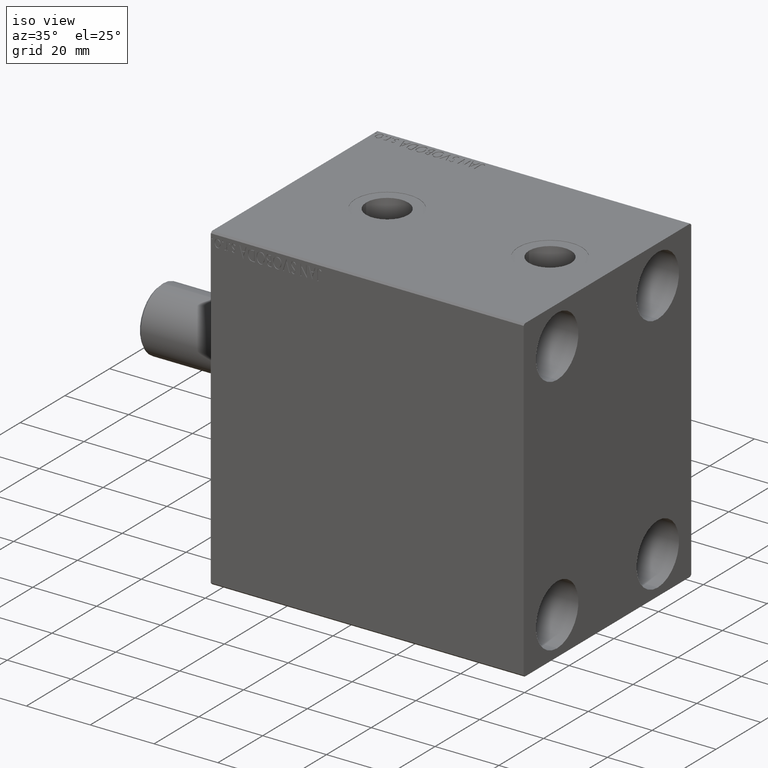
[diagram: clean part render]
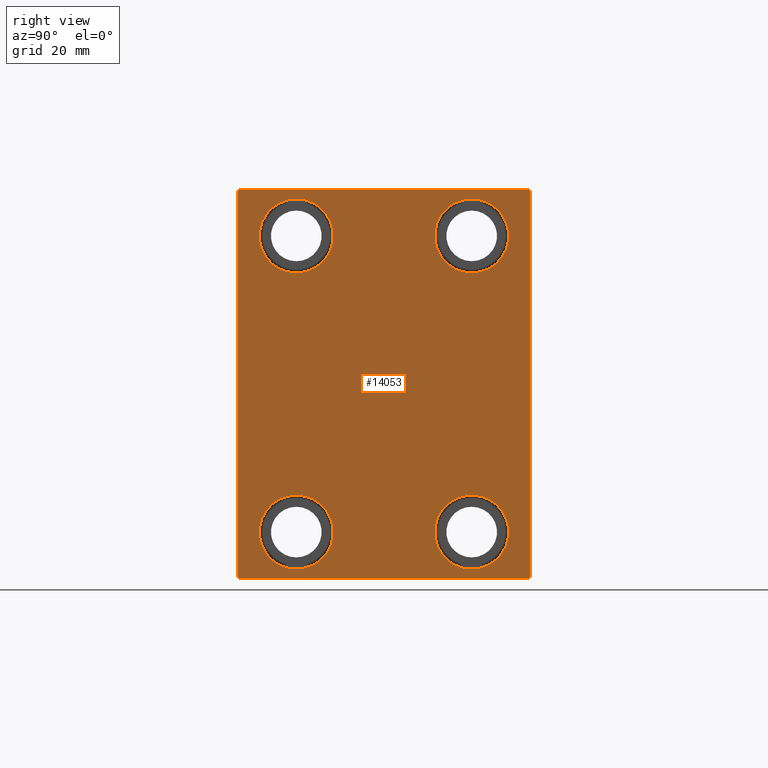
[diagram: tour spotlight — one face highlighted and labeled with its STEP entity id]
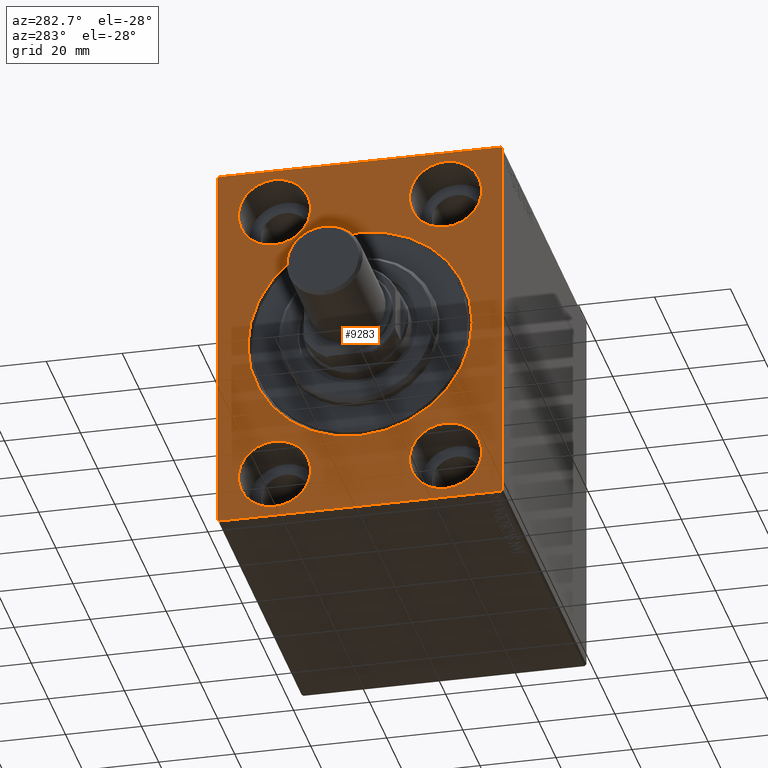
[diagram: tour spotlight — one face highlighted and labeled with its STEP entity id]
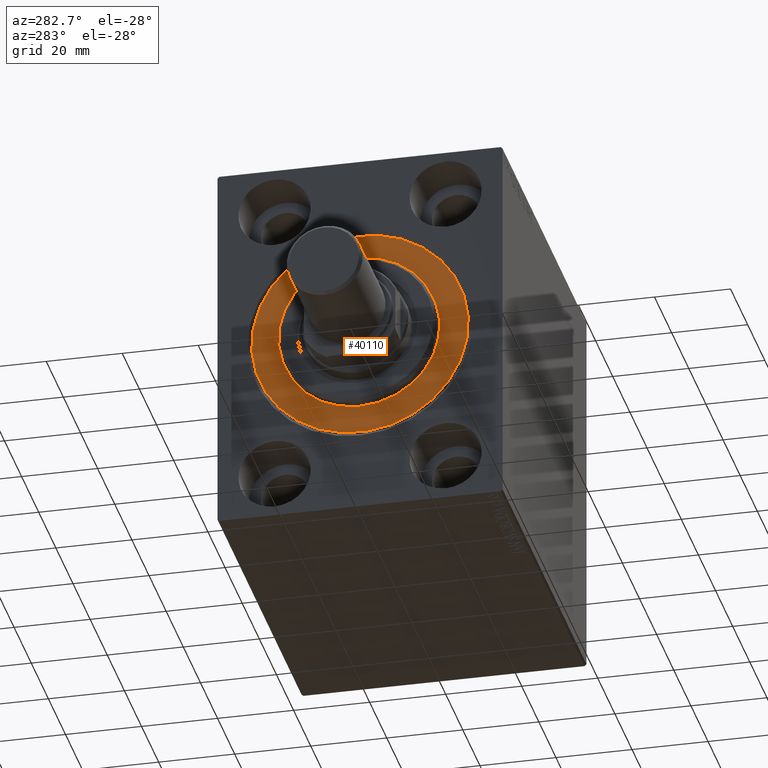
[diagram: tour spotlight — one face highlighted and labeled with its STEP entity id]
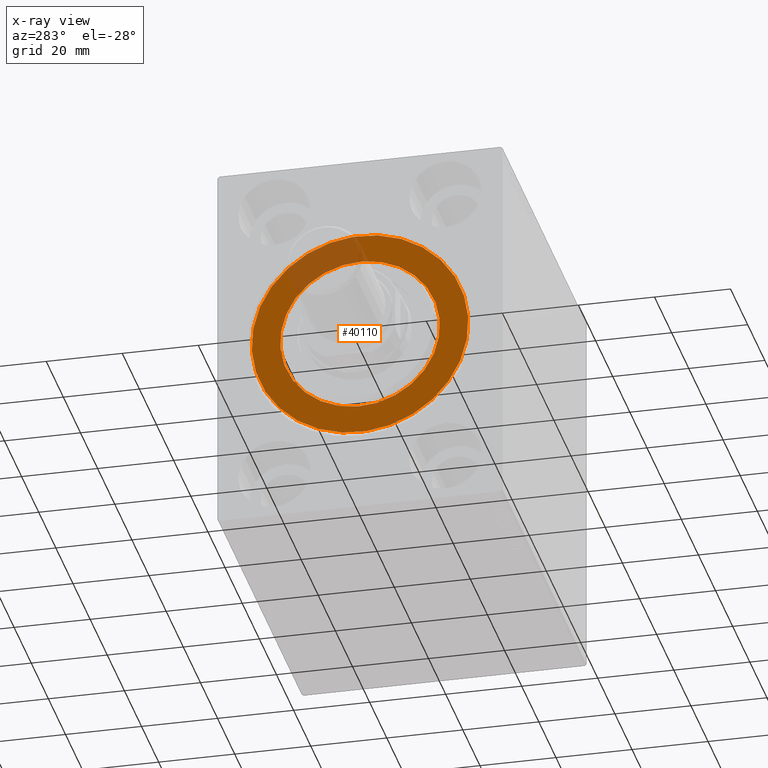
[diagram: x-ray of the same camera — body ghosted, this tour face saturated]
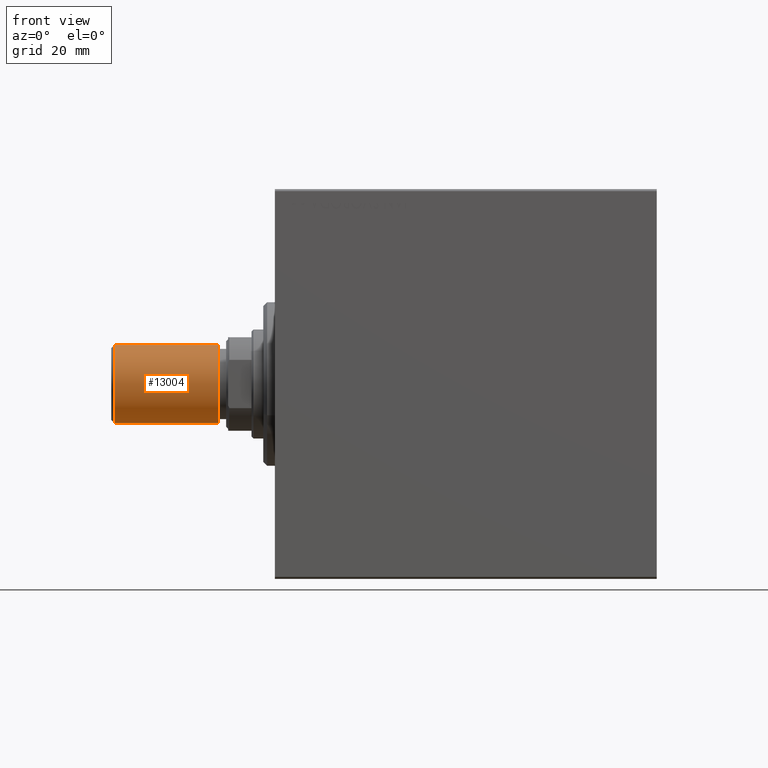
[diagram: tour spotlight — one face highlighted and labeled with its STEP entity id]
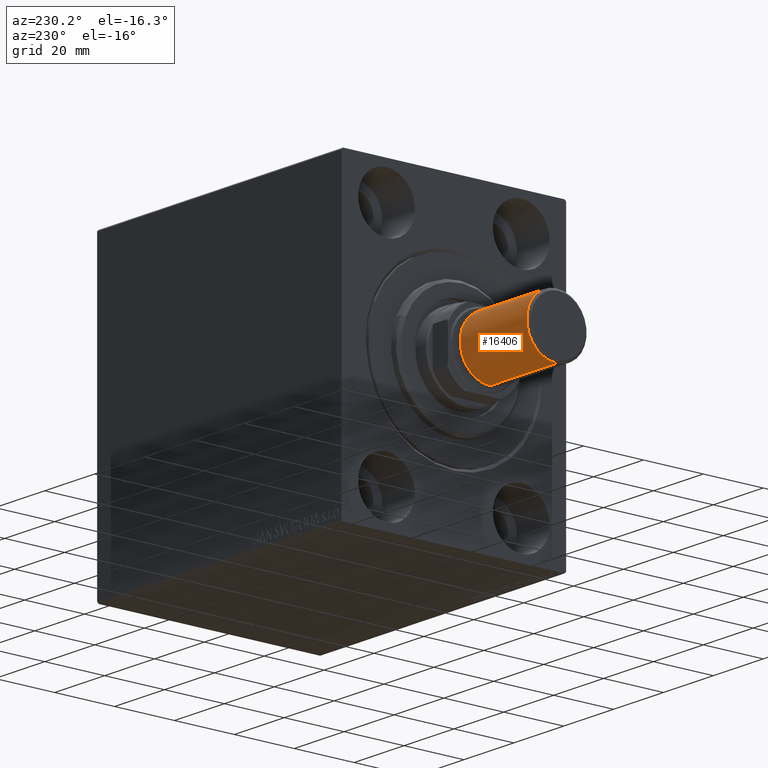
[diagram: tour spotlight — one face highlighted and labeled with its STEP entity id]
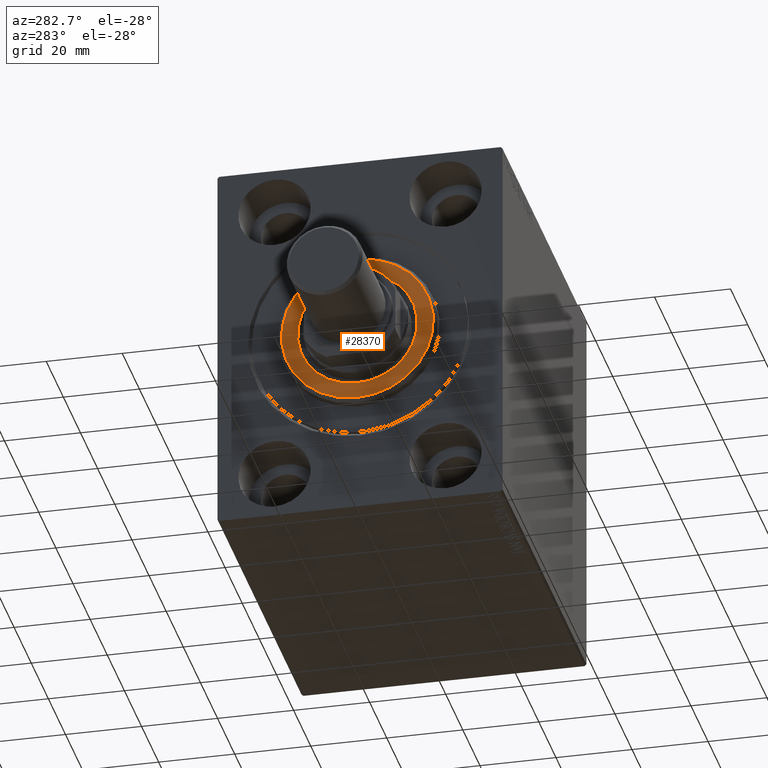
[diagram: tour spotlight — one face highlighted and labeled with its STEP entity id]
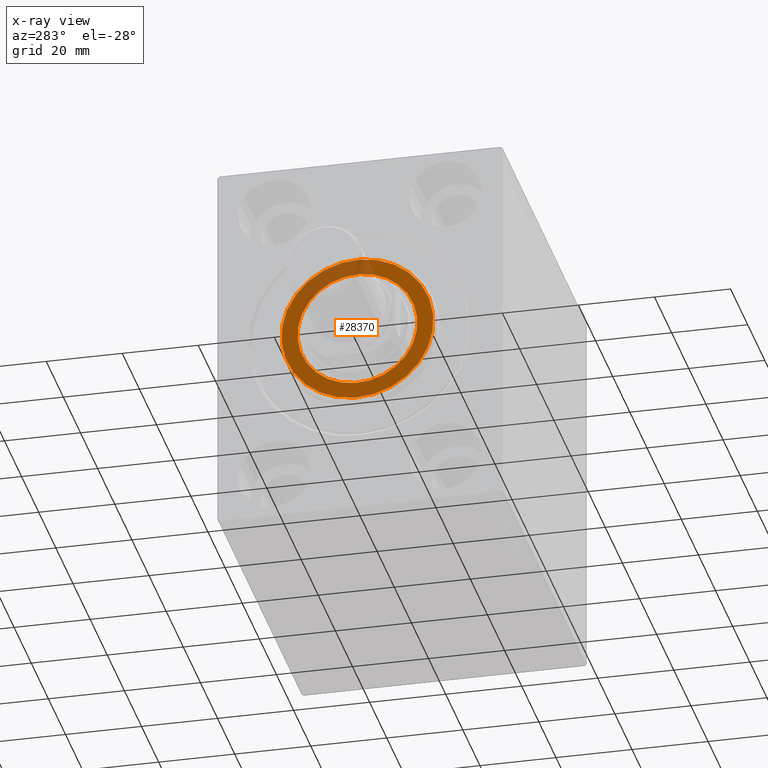
[diagram: x-ray of the same camera — body ghosted, this tour face saturated]
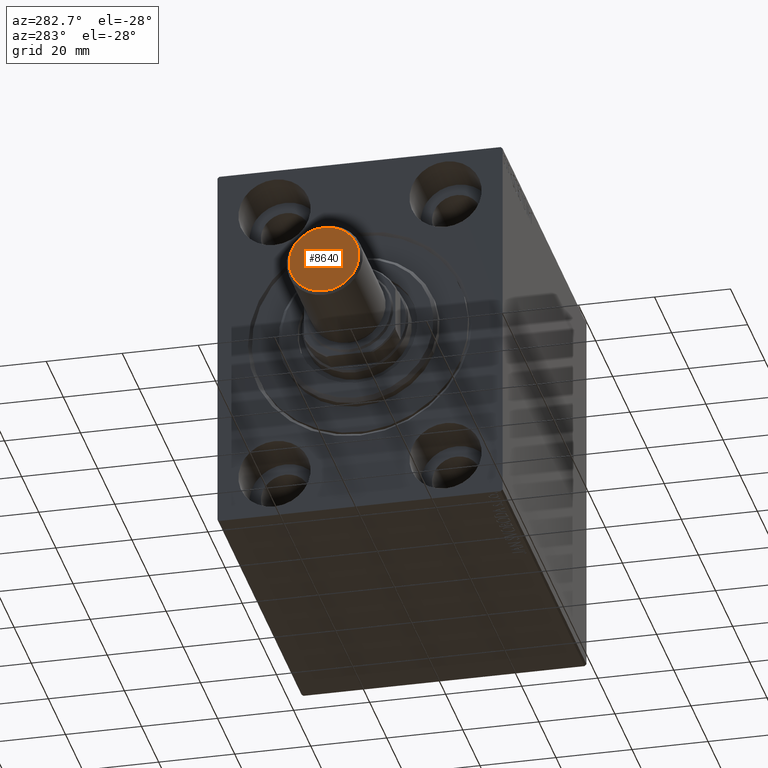
[diagram: tour spotlight — one face highlighted and labeled with its STEP entity id]
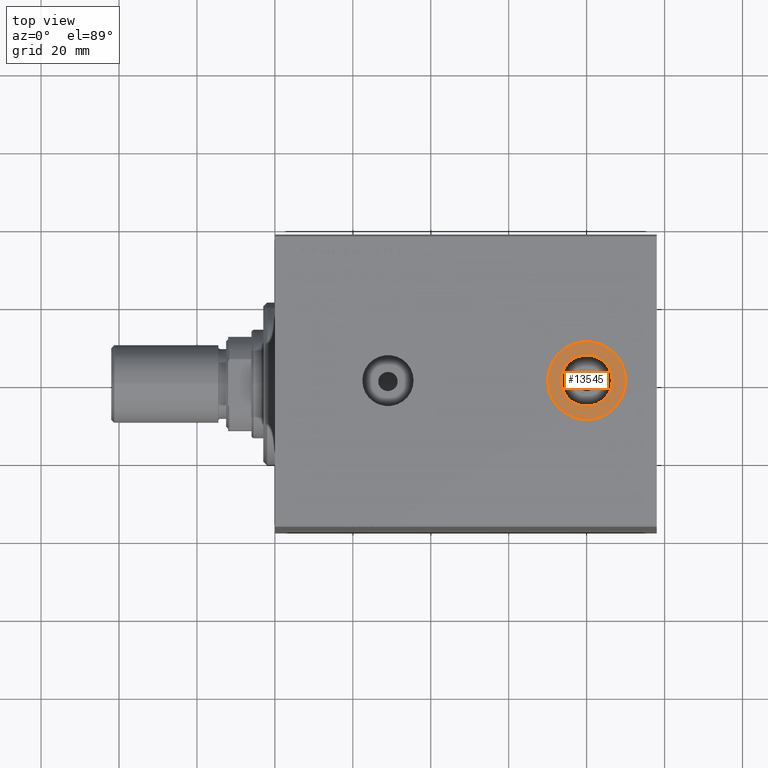
[diagram: tour spotlight — one face highlighted and labeled with its STEP entity id]
A machine part: a face-by-face anatomy tour. The part has 879 B-rep faces; the first image is the clean iso view, then the 8 largest visible faces are spotlighted one at a time (largest first), each with its STEP entity span.

Face 1 — right view, entity #14053. In plain terms, the highlighted planar face has unit normal (1, 0, 0).
Definition (entity closure, byte-faithful):
#362 = EDGE_LOOP ( 'NONE', ( #21159, #27202 ) ) ;
#370 = EDGE_CURVE ( 'NONE', #40879, #10435, #36344, .T. ) ;
#605 = CARTESIAN_POINT ( 'NONE',  ( 98.00000000000000000, -22.50000000000000711, -47.49999999999999289 ) ) ;
#818 = EDGE_LOOP ( 'NONE', ( #34796, #25133 ) ) ;
#903 = LINE ( 'NONE', #2189, #10638 ) ;
#1364 = ORIENTED_EDGE ( 'NONE', *, *, #17977, .T. ) ;
#1519 = CARTESIAN_POINT ( 'NONE',  ( 98.00000000000000000, 22.50000000000000355, 28.49999999999998934 ) ) ;
#1703 = DIRECTION ( 'NONE',  ( 0.000000000000000000, 0.000000000000000000, 1.000000000000000000 ) ) ;
#1953 = AXIS2_PLACEMENT_3D ( 'NONE', #19482, #2151, #1703 ) ;
#1962 = LINE ( 'NONE', #18862, #25014 ) ;
#2151 = DIRECTION ( 'NONE',  ( -1.000000000000000000, -0.000000000000000000, -0.000000000000000000 ) ) ;
#2189 = CARTESIAN_POINT ( 'NONE',  ( 98.00000000000000000, 43.50000000000000711, -43.50000000000000711 ) ) ;
#2456 = FACE_OUTER_BOUND ( 'NONE', #33519, .T. ) ;
#3147 = CARTESIAN_POINT ( 'NONE',  ( 98.00000000000000000, 37.50000000000000711, -49.50000000000000000 ) ) ;
#3574 = DIRECTION ( 'NONE',  ( -1.000000000000000000, -0.000000000000000000, -0.000000000000000000 ) ) ;
#4339 = CARTESIAN_POINT ( 'NONE',  ( 98.00000000000000000, -22.49999999999999645, 37.99999999999999289 ) ) ;
#4883 = AXIS2_PLACEMENT_3D ( 'NONE', #33538, #9860, #40316 ) ;
#5154 = CARTESIAN_POINT ( 'NONE',  ( 98.00000000000000000, 22.49999999999999645, -47.49999999999999289 ) ) ;
#5298 = EDGE_LOOP ( 'NONE', ( #27399, #8895 ) ) ;
#5654 = LINE ( 'NONE', #19386, #18758 ) ;
#5766 = CARTESIAN_POINT ( 'NONE',  ( 98.00000000000000000, -22.49999999999999645, 28.49999999999998934 ) ) ;
#6064 = FACE_BOUND ( 'NONE', #362, .T. ) ;
#6301 = VECTOR ( 'NONE', #37036, 999.9999999999998863 ) ;
#6491 = VERTEX_POINT ( 'NONE', #34784 ) ;
#6723 = FACE_BOUND ( 'NONE', #5298, .T. ) ;
#7126 = AXIS2_PLACEMENT_3D ( 'NONE', #25821, #12077, #40028 ) ;
#7720 = CARTESIAN_POINT ( 'NONE',  ( 98.00000000000000000, -36.99999999999999289, -50.00000000000000711 ) ) ;
#8305 = CARTESIAN_POINT ( 'NONE',  ( 98.00000000000000000, 22.50000000000000355, 37.99999999999999289 ) ) ;
#8330 = DIRECTION ( 'NONE',  ( -0.000000000000000000, 0.7071067811865474617, 0.7071067811865474617 ) ) ;
#8442 = CARTESIAN_POINT ( 'NONE',  ( 98.00000000000000000, -22.49999999999999645, 47.49999999999999289 ) ) ;
#8450 = ORIENTED_EDGE ( 'NONE', *, *, #39974, .T. ) ;
#8471 = CARTESIAN_POINT ( 'NONE',  ( 98.00000000000000000, 22.50000000000000355, 47.49999999999999289 ) ) ;
#8593 = DIRECTION ( 'NONE',  ( 0.000000000000000000, -1.000000000000000000, -1.850371707708594316E-16 ) ) ;
#8895 = ORIENTED_EDGE ( 'NONE', *, *, #40113, .T. ) ;
#9345 = VERTEX_POINT ( 'NONE', #5154 ) ;
#9738 = CARTESIAN_POINT ( 'NONE',  ( 98.00000000000000000, 43.50000000000026290, 43.49999999999965894 ) ) ;
#9851 = CIRCLE ( 'NONE', #1953, 9.500000000000001776 ) ;
#9860 = DIRECTION ( 'NONE',  ( 1.000000000000000000, 0.000000000000000000, 0.000000000000000000 ) ) ;
#9909 = AXIS2_PLACEMENT_3D ( 'NONE', #20336, #40856, #17390 ) ;
#10435 = VERTEX_POINT ( 'NONE', #605 ) ;
#10638 = VECTOR ( 'NONE', #8330, 1000.000000000000114 ) ;
#11002 = CARTESIAN_POINT ( 'NONE',  ( 98.00000000000000000, 22.49999999999999645, -37.99999999999999289 ) ) ;
#11075 = DIRECTION ( 'NONE',  ( 0.000000000000000000, 0.000000000000000000, 1.000000000000000000 ) ) ;
#12077 = DIRECTION ( 'NONE',  ( -1.000000000000000000, -0.000000000000000000, -0.000000000000000000 ) ) ;
#12135 = EDGE_LOOP ( 'NONE', ( #1364, #33235 ) ) ;
#12338 = EDGE_CURVE ( 'NONE', #20696, #43099, #28590, .T. ) ;
#12791 = EDGE_CURVE ( 'NONE', #41630, #19321, #27507, .T. ) ;
#12943 = EDGE_CURVE ( 'NONE', #22672, #6491, #43066, .T. ) ;
#12964 = CARTESIAN_POINT ( 'NONE',  ( 98.00000000000000000, 36.99999999999999289, 50.00000000000000711 ) ) ;
#13653 = EDGE_CURVE ( 'NONE', #9345, #28278, #28620, .T. ) ;
#13798 = ORIENTED_EDGE ( 'NONE', *, *, #24364, .T. ) ;
#13941 = DIRECTION ( 'NONE',  ( 0.000000000000000000, 0.000000000000000000, 1.000000000000000000 ) ) ;
#14053 = ADVANCED_FACE ( 'NONE', ( #6723, #34189, #6064, #23163, #2456 ), #19791, .T. ) ;
#14616 = VERTEX_POINT ( 'NONE', #29980 ) ;
#14710 = EDGE_CURVE ( 'NONE', #38111, #17102, #903, .T. ) ;
#14993 = AXIS2_PLACEMENT_3D ( 'NONE', #4339, #18072, #11075 ) ;
#15234 = EDGE_CURVE ( 'NONE', #17692, #26327, #30088, .T. ) ;
#15281 = DIRECTION ( 'NONE',  ( 0.000000000000000000, 0.000000000000000000, 1.000000000000000000 ) ) ;
#15562 = CARTESIAN_POINT ( 'NONE',  ( 98.00000000000000000, -43.49999999999998579, 43.49999999999998579 ) ) ;
#16083 = ORIENTED_EDGE ( 'NONE', *, *, #12943, .T. ) ;
#16622 = EDGE_CURVE ( 'NONE', #43099, #20696, #19348, .T. ) ;
#16973 = ORIENTED_EDGE ( 'NONE', *, *, #32536, .T. ) ;
#17102 = VERTEX_POINT ( 'NONE', #3147 ) ;
#17210 = ORIENTED_EDGE ( 'NONE', *, *, #14710, .T. ) ;
#17217 = AXIS2_PLACEMENT_3D ( 'NONE', #17546, #28793, #27893 ) ;
#17310 = DIRECTION ( 'NONE',  ( 0.000000000000000000, 0.000000000000000000, 1.000000000000000000 ) ) ;
#17390 = DIRECTION ( 'NONE',  ( 0.000000000000000000, 0.000000000000000000, 1.000000000000000000 ) ) ;
#17546 = CARTESIAN_POINT ( 'NONE',  ( 98.00000000000000000, -22.50000000000000711, -37.99999999999999289 ) ) ;
#17692 = VERTEX_POINT ( 'NONE', #5766 ) ;
#17977 = EDGE_CURVE ( 'NONE', #10435, #40879, #30186, .T. ) ;
#18072 = DIRECTION ( 'NONE',  ( -1.000000000000000000, -0.000000000000000000, -0.000000000000000000 ) ) ;
#18758 = VECTOR ( 'NONE', #29742, 1000.000000000000000 ) ;
#18862 = CARTESIAN_POINT ( 'NONE',  ( 98.00000000000000000, -43.50000000000000000, -43.50000000000000000 ) ) ;
#18867 = EDGE_CURVE ( 'NONE', #19321, #22672, #32023, .T. ) ;
#19247 = AXIS2_PLACEMENT_3D ( 'NONE', #8305, #22031, #15281 ) ;
#19321 = VERTEX_POINT ( 'NONE', #12964 ) ;
#19348 = CIRCLE ( 'NONE', #7126, 9.500000000000001776 ) ;
#19386 = CARTESIAN_POINT ( 'NONE',  ( 98.00000000000000000, -37.50000000000000711, 49.99999999999999289 ) ) ;
#19437 = VECTOR ( 'NONE', #44415, 1000.000000000000000 ) ;
#19482 = CARTESIAN_POINT ( 'NONE',  ( 98.00000000000000000, -22.49999999999999645, 37.99999999999999289 ) ) ;
#19695 = ORIENTED_EDGE ( 'NONE', *, *, #18867, .T. ) ;
#19791 = PLANE ( 'NONE',  #4883 ) ;
#20336 = CARTESIAN_POINT ( 'NONE',  ( 98.00000000000000000, 22.49999999999999645, -37.99999999999999289 ) ) ;
#20696 = VERTEX_POINT ( 'NONE', #8471 ) ;
#21159 = ORIENTED_EDGE ( 'NONE', *, *, #16622, .T. ) ;
#22031 = DIRECTION ( 'NONE',  ( -1.000000000000000000, -0.000000000000000000, -0.000000000000000000 ) ) ;
#22166 = CARTESIAN_POINT ( 'NONE',  ( 98.00000000000000000, 22.49999999999999645, -28.49999999999998934 ) ) ;
#22672 = VERTEX_POINT ( 'NONE', #27435 ) ;
#23163 = FACE_BOUND ( 'NONE', #12135, .T. ) ;
#23810 = EDGE_CURVE ( 'NONE', #26327, #17692, #9851, .T. ) ;
#24364 = EDGE_CURVE ( 'NONE', #17102, #41630, #28836, .T. ) ;
#25014 = VECTOR ( 'NONE', #25606, 1000.000000000000114 ) ;
#25133 = ORIENTED_EDGE ( 'NONE', *, *, #23810, .T. ) ;
#25276 = AXIS2_PLACEMENT_3D ( 'NONE', #11002, #28345, #13941 ) ;
#25606 = DIRECTION ( 'NONE',  ( -0.000000000000000000, 0.7071067811865474617, -0.7071067811865474617 ) ) ;
#25821 = CARTESIAN_POINT ( 'NONE',  ( 98.00000000000000000, 22.50000000000000355, 37.99999999999999289 ) ) ;
#25970 = EDGE_CURVE ( 'NONE', #14616, #29488, #1962, .T. ) ;
#26327 = VERTEX_POINT ( 'NONE', #8442 ) ;
#27202 = ORIENTED_EDGE ( 'NONE', *, *, #12338, .T. ) ;
#27399 = ORIENTED_EDGE ( 'NONE', *, *, #13653, .T. ) ;
#27435 = CARTESIAN_POINT ( 'NONE',  ( 98.00000000000000000, -36.99999999999999289, 49.99999999999999289 ) ) ;
#27507 = LINE ( 'NONE', #9738, #6301 ) ;
#27893 = DIRECTION ( 'NONE',  ( 0.000000000000000000, 0.000000000000000000, 1.000000000000000000 ) ) ;
#27935 = CARTESIAN_POINT ( 'NONE',  ( 98.00000000000000000, -37.50000000000000711, -50.00000000000000711 ) ) ;
#28278 = VERTEX_POINT ( 'NONE', #22166 ) ;
#28345 = DIRECTION ( 'NONE',  ( -1.000000000000000000, -0.000000000000000000, -0.000000000000000000 ) ) ;
#28590 = CIRCLE ( 'NONE', #19247, 9.500000000000001776 ) ;
#28620 = CIRCLE ( 'NONE', #9909, 9.500000000000001776 ) ;
#28630 = CARTESIAN_POINT ( 'NONE',  ( 98.00000000000000000, 37.49999999999999289, 50.00000000000000711 ) ) ;
#28755 = VECTOR ( 'NONE', #8593, 1000.000000000000000 ) ;
#28793 = DIRECTION ( 'NONE',  ( -1.000000000000000000, -0.000000000000000000, -0.000000000000000000 ) ) ;
#28836 = LINE ( 'NONE', #36066, #35757 ) ;
#29488 = VERTEX_POINT ( 'NONE', #7720 ) ;
#29593 = CIRCLE ( 'NONE', #25276, 9.500000000000001776 ) ;
#29742 = DIRECTION ( 'NONE',  ( 0.000000000000000000, 0.000000000000000000, -1.000000000000000000 ) ) ;
#29980 = CARTESIAN_POINT ( 'NONE',  ( 98.00000000000000000, -37.50000000000000711, -49.49999999999999289 ) ) ;
#30015 = VECTOR ( 'NONE', #43285, 1000.000000000000114 ) ;
#30088 = CIRCLE ( 'NONE', #14993, 9.500000000000001776 ) ;
#30186 = CIRCLE ( 'NONE', #17217, 9.500000000000001776 ) ;
#31331 = LINE ( 'NONE', #27935, #19437 ) ;
#32023 = LINE ( 'NONE', #28630, #28755 ) ;
#32536 = EDGE_CURVE ( 'NONE', #29488, #38111, #31331, .T. ) ;
#33235 = ORIENTED_EDGE ( 'NONE', *, *, #370, .T. ) ;
#33519 = EDGE_LOOP ( 'NONE', ( #19695, #16083, #8450, #43250, #16973, #17210, #13798, #43982 ) ) ;
#33538 = CARTESIAN_POINT ( 'NONE',  ( 98.00000000000000000, 0.000000000000000000, 0.000000000000000000 ) ) ;
#34189 = FACE_BOUND ( 'NONE', #818, .T. ) ;
#34432 = CARTESIAN_POINT ( 'NONE',  ( 98.00000000000000000, -22.50000000000000711, -37.99999999999999289 ) ) ;
#34784 = CARTESIAN_POINT ( 'NONE',  ( 98.00000000000000000, -37.50000000000000711, 49.49999999999997868 ) ) ;
#34796 = ORIENTED_EDGE ( 'NONE', *, *, #15234, .T. ) ;
#35757 = VECTOR ( 'NONE', #35839, 1000.000000000000000 ) ;
#35839 = DIRECTION ( 'NONE',  ( 0.000000000000000000, -1.387778780781445676E-16, 1.000000000000000000 ) ) ;
#36066 = CARTESIAN_POINT ( 'NONE',  ( 98.00000000000000000, 37.50000000000000711, -50.00000000000000000 ) ) ;
#36344 = CIRCLE ( 'NONE', #37066, 9.500000000000001776 ) ;
#37036 = DIRECTION ( 'NONE',  ( -0.000000000000000000, -0.7071067811865425767, 0.7071067811865525687 ) ) ;
#37066 = AXIS2_PLACEMENT_3D ( 'NONE', #34432, #3574, #17310 ) ;
#37882 = CARTESIAN_POINT ( 'NONE',  ( 98.00000000000000000, 37.00000000000000711, -50.00000000000000000 ) ) ;
#38111 = VERTEX_POINT ( 'NONE', #37882 ) ;
#39974 = EDGE_CURVE ( 'NONE', #6491, #14616, #5654, .T. ) ;
#40028 = DIRECTION ( 'NONE',  ( 0.000000000000000000, 0.000000000000000000, 1.000000000000000000 ) ) ;
#40113 = EDGE_CURVE ( 'NONE', #28278, #9345, #29593, .T. ) ;
#40316 = DIRECTION ( 'NONE',  ( 0.000000000000000000, 0.000000000000000000, -1.000000000000000000 ) ) ;
#40856 = DIRECTION ( 'NONE',  ( -1.000000000000000000, -0.000000000000000000, -0.000000000000000000 ) ) ;
#40879 = VERTEX_POINT ( 'NONE', #43012 ) ;
#41630 = VERTEX_POINT ( 'NONE', #42623 ) ;
#42623 = CARTESIAN_POINT ( 'NONE',  ( 98.00000000000000000, 37.49999999999999289, 49.50000000000000000 ) ) ;
#43012 = CARTESIAN_POINT ( 'NONE',  ( 98.00000000000000000, -22.50000000000000711, -28.49999999999998934 ) ) ;
#43066 = LINE ( 'NONE', #15562, #30015 ) ;
#43099 = VERTEX_POINT ( 'NONE', #1519 ) ;
#43250 = ORIENTED_EDGE ( 'NONE', *, *, #25970, .T. ) ;
#43285 = DIRECTION ( 'NONE',  ( 0.000000000000000000, -0.7071067811865474617, -0.7071067811865474617 ) ) ;
#43982 = ORIENTED_EDGE ( 'NONE', *, *, #12791, .T. ) ;
#44415 = DIRECTION ( 'NONE',  ( 0.000000000000000000, 1.000000000000000000, 9.251858538542970348E-17 ) ) ;

Face 2 — auxiliary view, entity #9283. In plain terms, the highlighted planar face has unit normal (1, 0, 0).
Definition (entity closure, byte-faithful):
#270 = DIRECTION ( 'NONE',  ( 0.000000000000000000, 0.000000000000000000, 1.000000000000000000 ) ) ;
#485 = EDGE_CURVE ( 'NONE', #24849, #712, #16899, .T. ) ;
#663 = CIRCLE ( 'NONE', #27268, 29.50000000000001421 ) ;
#712 = VERTEX_POINT ( 'NONE', #19481 ) ;
#872 = PLANE ( 'NONE',  #24921 ) ;
#922 = CARTESIAN_POINT ( 'NONE',  ( 0.000000000000000000, -22.50000000000000711, -28.49999999999998934 ) ) ;
#1359 = DIRECTION ( 'NONE',  ( 0.000000000000000000, 0.000000000000000000, 1.000000000000000000 ) ) ;
#1551 = EDGE_CURVE ( 'NONE', #44582, #33221, #44249, .T. ) ;
#1558 = EDGE_CURVE ( 'NONE', #38218, #29268, #32016, .T. ) ;
#2463 = DIRECTION ( 'NONE',  ( 0.000000000000000000, 0.000000000000000000, 1.000000000000000000 ) ) ;
#2653 = CARTESIAN_POINT ( 'NONE',  ( 0.000000000000000000, 0.000000000000000000, 0.000000000000000000 ) ) ;
#2844 = EDGE_CURVE ( 'NONE', #20258, #14453, #28430, .T. ) ;
#2930 = VERTEX_POINT ( 'NONE', #17825 ) ;
#2986 = CARTESIAN_POINT ( 'NONE',  ( 0.000000000000000000, 22.50000000000000355, 47.49999999999999289 ) ) ;
#3155 = ORIENTED_EDGE ( 'NONE', *, *, #3385, .T. ) ;
#3239 = VECTOR ( 'NONE', #39990, 1000.000000000000000 ) ;
#3385 = EDGE_CURVE ( 'NONE', #12531, #42710, #29165, .T. ) ;
#3392 = AXIS2_PLACEMENT_3D ( 'NONE', #34054, #30455, #26844 ) ;
#3435 = CARTESIAN_POINT ( 'NONE',  ( 0.000000000000000000, 37.49999999999999289, 50.00000000000000711 ) ) ;
#3584 = FACE_OUTER_BOUND ( 'NONE', #34492, .T. ) ;
#3648 = DIRECTION ( 'NONE',  ( -1.000000000000000000, 0.000000000000000000, 0.000000000000000000 ) ) ;
#3936 = CARTESIAN_POINT ( 'NONE',  ( 0.000000000000000000, 22.49999999999999645, -28.49999999999998934 ) ) ;
#4851 = CARTESIAN_POINT ( 'NONE',  ( 0.000000000000000000, -22.50000000000000711, -47.49999999999999289 ) ) ;
#4953 = CARTESIAN_POINT ( 'NONE',  ( 0.000000000000000000, 22.50000000000000355, 37.99999999999999289 ) ) ;
#5371 = VECTOR ( 'NONE', #25790, 1000.000000000000114 ) ;
#5890 = EDGE_CURVE ( 'NONE', #33221, #44582, #19093, .T. ) ;
#5941 = EDGE_CURVE ( 'NONE', #12531, #17933, #43806, .T. ) ;
#6427 = DIRECTION ( 'NONE',  ( 0.000000000000000000, 0.000000000000000000, 1.000000000000000000 ) ) ;
#6632 = EDGE_CURVE ( 'NONE', #30559, #33833, #8637, .T. ) ;
#6915 = DIRECTION ( 'NONE',  ( 0.000000000000000000, 0.000000000000000000, -1.000000000000000000 ) ) ;
#7413 = DIRECTION ( 'NONE',  ( 1.000000000000000000, 0.000000000000000000, 0.000000000000000000 ) ) ;
#8637 = LINE ( 'NONE', #15609, #26989 ) ;
#8740 = VERTEX_POINT ( 'NONE', #25434 ) ;
#8809 = ORIENTED_EDGE ( 'NONE', *, *, #37479, .F. ) ;
#8990 = CARTESIAN_POINT ( 'NONE',  ( 0.000000000000000000, -36.99999999999999289, -50.00000000000000711 ) ) ;
#9283 = ADVANCED_FACE ( 'NONE', ( #34890, #14822, #13929, #31737, #38497, #3584 ), #872, .F. ) ;
#9346 = CARTESIAN_POINT ( 'NONE',  ( 0.000000000000000000, -22.50000000000000711, -37.99999999999999289 ) ) ;
#9372 = CARTESIAN_POINT ( 'NONE',  ( 0.000000000000000000, 0.000000000000000000, 29.50000000000001421 ) ) ;
#9400 = DIRECTION ( 'NONE',  ( 1.000000000000000000, 0.000000000000000000, 0.000000000000000000 ) ) ;
#9744 = DIRECTION ( 'NONE',  ( 0.000000000000000000, -1.000000000000000000, -1.850371707708594316E-16 ) ) ;
#10069 = VERTEX_POINT ( 'NONE', #32008 ) ;
#10934 = ORIENTED_EDGE ( 'NONE', *, *, #1558, .F. ) ;
#11088 = CARTESIAN_POINT ( 'NONE',  ( 0.000000000000000000, 37.50000000000000711, -49.50000000000000000 ) ) ;
#11487 = DIRECTION ( 'NONE',  ( -1.000000000000000000, 0.000000000000000000, 0.000000000000000000 ) ) ;
#11913 = DIRECTION ( 'NONE',  ( -0.000000000000000000, -0.7071067811865474617, 0.7071067811865474617 ) ) ;
#11927 = CARTESIAN_POINT ( 'NONE',  ( 0.000000000000000000, -22.49999999999999645, 37.99999999999999289 ) ) ;
#12509 = LINE ( 'NONE', #15890, #39645 ) ;
#12531 = VERTEX_POINT ( 'NONE', #42505 ) ;
#12596 = AXIS2_PLACEMENT_3D ( 'NONE', #9346, #37080, #20152 ) ;
#13467 = ORIENTED_EDGE ( 'NONE', *, *, #24111, .F. ) ;
#13659 = VERTEX_POINT ( 'NONE', #17835 ) ;
#13929 = FACE_BOUND ( 'NONE', #38752, .T. ) ;
#13991 = AXIS2_PLACEMENT_3D ( 'NONE', #2653, #9400, #40508 ) ;
#14219 = DIRECTION ( 'NONE',  ( -1.000000000000000000, 0.000000000000000000, 0.000000000000000000 ) ) ;
#14376 = CARTESIAN_POINT ( 'NONE',  ( 0.000000000000000000, 0.000000000000000000, 0.000000000000000000 ) ) ;
#14453 = VERTEX_POINT ( 'NONE', #41080 ) ;
#14665 = CARTESIAN_POINT ( 'NONE',  ( 0.000000000000000000, -22.50000000000000711, -37.99999999999999289 ) ) ;
#14822 = FACE_BOUND ( 'NONE', #31230, .T. ) ;
#14846 = ORIENTED_EDGE ( 'NONE', *, *, #39307, .F. ) ;
#15200 = CARTESIAN_POINT ( 'NONE',  ( 0.000000000000000000, 22.49999999999999645, -37.99999999999999289 ) ) ;
#15301 = ORIENTED_EDGE ( 'NONE', *, *, #41400, .F. ) ;
#15313 = ORIENTED_EDGE ( 'NONE', *, *, #1551, .F. ) ;
#15609 = CARTESIAN_POINT ( 'NONE',  ( 0.000000000000000000, 36.99999999999999289, 50.00000000000000711 ) ) ;
#15890 = CARTESIAN_POINT ( 'NONE',  ( 0.000000000000000000, 37.50000000000000711, -50.00000000000000000 ) ) ;
#16334 = DIRECTION ( 'NONE',  ( 0.000000000000000000, -1.387778780781445676E-16, 1.000000000000000000 ) ) ;
#16899 = CIRCLE ( 'NONE', #13991, 29.50000000000001421 ) ;
#17195 = ORIENTED_EDGE ( 'NONE', *, *, #6632, .T. ) ;
#17415 = EDGE_CURVE ( 'NONE', #712, #24849, #663, .T. ) ;
#17428 = VECTOR ( 'NONE', #11913, 1000.000000000000114 ) ;
#17541 = DIRECTION ( 'NONE',  ( 0.000000000000000000, 0.000000000000000000, -1.000000000000000000 ) ) ;
#17825 = CARTESIAN_POINT ( 'NONE',  ( 0.000000000000000000, -36.99999999999999289, -50.00000000000000711 ) ) ;
#17835 = CARTESIAN_POINT ( 'NONE',  ( 0.000000000000000000, 37.00000000000000711, -50.00000000000000000 ) ) ;
#17933 = VERTEX_POINT ( 'NONE', #42111 ) ;
#18583 = CARTESIAN_POINT ( 'NONE',  ( 0.000000000000000000, -37.50000000000000711, -50.00000000000000711 ) ) ;
#19093 = CIRCLE ( 'NONE', #35634, 9.500000000000001776 ) ;
#19481 = CARTESIAN_POINT ( 'NONE',  ( 0.000000000000000000, 3.612708057484693970E-15, -29.50000000000001421 ) ) ;
#20024 = ORIENTED_EDGE ( 'NONE', *, *, #485, .T. ) ;
#20152 = DIRECTION ( 'NONE',  ( 0.000000000000000000, 0.000000000000000000, 1.000000000000000000 ) ) ;
#20240 = VECTOR ( 'NONE', #9744, 1000.000000000000000 ) ;
#20258 = VERTEX_POINT ( 'NONE', #2986 ) ;
#20682 = CIRCLE ( 'NONE', #26436, 9.500000000000001776 ) ;
#21596 = ORIENTED_EDGE ( 'NONE', *, *, #40575, .F. ) ;
#22353 = EDGE_CURVE ( 'NONE', #2930, #13659, #32324, .T. ) ;
#22770 = VECTOR ( 'NONE', #39095, 1000.000000000000000 ) ;
#23128 = AXIS2_PLACEMENT_3D ( 'NONE', #14665, #14219, #28186 ) ;
#23919 = LINE ( 'NONE', #3435, #20240 ) ;
#24111 = EDGE_CURVE ( 'NONE', #39618, #8740, #30724, .T. ) ;
#24830 = DIRECTION ( 'NONE',  ( 0.000000000000000000, -0.7071067811865474617, -0.7071067811865474617 ) ) ;
#24849 = VERTEX_POINT ( 'NONE', #9372 ) ;
#24921 = AXIS2_PLACEMENT_3D ( 'NONE', #14376, #7413, #17541 ) ;
#25434 = CARTESIAN_POINT ( 'NONE',  ( 0.000000000000000000, -22.49999999999999645, 28.49999999999998934 ) ) ;
#25552 = EDGE_CURVE ( 'NONE', #14453, #20258, #20682, .T. ) ;
#25560 = DIRECTION ( 'NONE',  ( -1.000000000000000000, 0.000000000000000000, 0.000000000000000000 ) ) ;
#25790 = DIRECTION ( 'NONE',  ( -0.000000000000000000, 0.7071067811865474617, 0.7071067811865474617 ) ) ;
#26106 = LINE ( 'NONE', #8990, #17428 ) ;
#26226 = CARTESIAN_POINT ( 'NONE',  ( 0.000000000000000000, -37.50000000000000711, 49.99999999999999289 ) ) ;
#26436 = AXIS2_PLACEMENT_3D ( 'NONE', #4953, #29714, #2463 ) ;
#26844 = DIRECTION ( 'NONE',  ( 0.000000000000000000, 0.000000000000000000, 1.000000000000000000 ) ) ;
#26989 = VECTOR ( 'NONE', #43111, 999.9999999999998863 ) ;
#27238 = EDGE_LOOP ( 'NONE', ( #39081, #29930 ) ) ;
#27268 = AXIS2_PLACEMENT_3D ( 'NONE', #33521, #41176, #6915 ) ;
#27324 = EDGE_CURVE ( 'NONE', #10069, #13659, #35442, .T. ) ;
#27944 = CARTESIAN_POINT ( 'NONE',  ( 0.000000000000000000, 22.49999999999999645, -47.49999999999999289 ) ) ;
#28186 = DIRECTION ( 'NONE',  ( 0.000000000000000000, 0.000000000000000000, 1.000000000000000000 ) ) ;
#28365 = CARTESIAN_POINT ( 'NONE',  ( 0.000000000000000000, 37.49999999999999289, 49.50000000000000000 ) ) ;
#28398 = AXIS2_PLACEMENT_3D ( 'NONE', #33674, #37298, #6427 ) ;
#28430 = CIRCLE ( 'NONE', #34205, 9.500000000000001776 ) ;
#28899 = CARTESIAN_POINT ( 'NONE',  ( 0.000000000000000000, -22.49999999999999645, 47.49999999999999289 ) ) ;
#29165 = LINE ( 'NONE', #42930, #5371 ) ;
#29268 = VERTEX_POINT ( 'NONE', #4851 ) ;
#29714 = DIRECTION ( 'NONE',  ( -1.000000000000000000, 0.000000000000000000, 0.000000000000000000 ) ) ;
#29930 = ORIENTED_EDGE ( 'NONE', *, *, #25552, .F. ) ;
#30455 = DIRECTION ( 'NONE',  ( -1.000000000000000000, 0.000000000000000000, 0.000000000000000000 ) ) ;
#30559 = VERTEX_POINT ( 'NONE', #33610 ) ;
#30724 = CIRCLE ( 'NONE', #3392, 9.500000000000001776 ) ;
#31230 = EDGE_LOOP ( 'NONE', ( #15313, #40227 ) ) ;
#31737 = FACE_BOUND ( 'NONE', #27238, .T. ) ;
#31990 = ORIENTED_EDGE ( 'NONE', *, *, #27324, .T. ) ;
#32008 = CARTESIAN_POINT ( 'NONE',  ( 0.000000000000000000, 37.50000000000000711, -49.50000000000000000 ) ) ;
#32016 = CIRCLE ( 'NONE', #12596, 9.500000000000001776 ) ;
#32244 = ORIENTED_EDGE ( 'NONE', *, *, #17415, .T. ) ;
#32324 = LINE ( 'NONE', #18583, #22770 ) ;
#32794 = ORIENTED_EDGE ( 'NONE', *, *, #5941, .F. ) ;
#33221 = VERTEX_POINT ( 'NONE', #27944 ) ;
#33521 = CARTESIAN_POINT ( 'NONE',  ( 0.000000000000000000, 0.000000000000000000, 0.000000000000000000 ) ) ;
#33610 = CARTESIAN_POINT ( 'NONE',  ( 0.000000000000000000, 36.99999999999999289, 50.00000000000000711 ) ) ;
#33674 = CARTESIAN_POINT ( 'NONE',  ( 0.000000000000000000, 22.49999999999999645, -37.99999999999999289 ) ) ;
#33833 = VERTEX_POINT ( 'NONE', #28365 ) ;
#33962 = ORIENTED_EDGE ( 'NONE', *, *, #42760, .T. ) ;
#34054 = CARTESIAN_POINT ( 'NONE',  ( 0.000000000000000000, -22.49999999999999645, 37.99999999999999289 ) ) ;
#34080 = CARTESIAN_POINT ( 'NONE',  ( 0.000000000000000000, -36.99999999999999289, 49.99999999999999289 ) ) ;
#34126 = EDGE_LOOP ( 'NONE', ( #10934, #21596 ) ) ;
#34205 = AXIS2_PLACEMENT_3D ( 'NONE', #37892, #3648, #270 ) ;
#34492 = EDGE_LOOP ( 'NONE', ( #32794, #3155, #15301, #17195, #14846, #31990, #39897, #33962 ) ) ;
#34890 = FACE_BOUND ( 'NONE', #44133, .T. ) ;
#35137 = VECTOR ( 'NONE', #24830, 1000.000000000000114 ) ;
#35442 = LINE ( 'NONE', #11088, #35137 ) ;
#35634 = AXIS2_PLACEMENT_3D ( 'NONE', #15200, #25560, #42699 ) ;
#36859 = AXIS2_PLACEMENT_3D ( 'NONE', #11927, #11487, #1359 ) ;
#37080 = DIRECTION ( 'NONE',  ( -1.000000000000000000, 0.000000000000000000, 0.000000000000000000 ) ) ;
#37298 = DIRECTION ( 'NONE',  ( -1.000000000000000000, 0.000000000000000000, 0.000000000000000000 ) ) ;
#37479 = EDGE_CURVE ( 'NONE', #8740, #39618, #43308, .T. ) ;
#37892 = CARTESIAN_POINT ( 'NONE',  ( 0.000000000000000000, 22.50000000000000355, 37.99999999999999289 ) ) ;
#38218 = VERTEX_POINT ( 'NONE', #922 ) ;
#38497 = FACE_BOUND ( 'NONE', #34126, .T. ) ;
#38752 = EDGE_LOOP ( 'NONE', ( #13467, #8809 ) ) ;
#39081 = ORIENTED_EDGE ( 'NONE', *, *, #2844, .F. ) ;
#39095 = DIRECTION ( 'NONE',  ( 0.000000000000000000, 1.000000000000000000, 9.251858538542970348E-17 ) ) ;
#39307 = EDGE_CURVE ( 'NONE', #10069, #33833, #12509, .T. ) ;
#39618 = VERTEX_POINT ( 'NONE', #28899 ) ;
#39645 = VECTOR ( 'NONE', #16334, 1000.000000000000000 ) ;
#39897 = ORIENTED_EDGE ( 'NONE', *, *, #22353, .F. ) ;
#39990 = DIRECTION ( 'NONE',  ( 0.000000000000000000, 0.000000000000000000, -1.000000000000000000 ) ) ;
#40227 = ORIENTED_EDGE ( 'NONE', *, *, #5890, .F. ) ;
#40508 = DIRECTION ( 'NONE',  ( 0.000000000000000000, 0.000000000000000000, -1.000000000000000000 ) ) ;
#40575 = EDGE_CURVE ( 'NONE', #29268, #38218, #42569, .T. ) ;
#41080 = CARTESIAN_POINT ( 'NONE',  ( 0.000000000000000000, 22.50000000000000355, 28.49999999999998934 ) ) ;
#41176 = DIRECTION ( 'NONE',  ( 1.000000000000000000, 0.000000000000000000, 0.000000000000000000 ) ) ;
#41400 = EDGE_CURVE ( 'NONE', #30559, #42710, #23919, .T. ) ;
#42111 = CARTESIAN_POINT ( 'NONE',  ( 0.000000000000000000, -37.50000000000000711, -49.49999999999999289 ) ) ;
#42505 = CARTESIAN_POINT ( 'NONE',  ( 0.000000000000000000, -37.50000000000000711, 49.49999999999997868 ) ) ;
#42569 = CIRCLE ( 'NONE', #23128, 9.500000000000001776 ) ;
#42699 = DIRECTION ( 'NONE',  ( 0.000000000000000000, 0.000000000000000000, 1.000000000000000000 ) ) ;
#42710 = VERTEX_POINT ( 'NONE', #34080 ) ;
#42760 = EDGE_CURVE ( 'NONE', #2930, #17933, #26106, .T. ) ;
#42930 = CARTESIAN_POINT ( 'NONE',  ( 0.000000000000000000, -37.50000000000000711, 49.49999999999997868 ) ) ;
#43111 = DIRECTION ( 'NONE',  ( -0.000000000000000000, 0.7071067811865425767, -0.7071067811865525687 ) ) ;
#43308 = CIRCLE ( 'NONE', #36859, 9.500000000000001776 ) ;
#43806 = LINE ( 'NONE', #26226, #3239 ) ;
#44133 = EDGE_LOOP ( 'NONE', ( #20024, #32244 ) ) ;
#44249 = CIRCLE ( 'NONE', #28398, 9.500000000000001776 ) ;
#44582 = VERTEX_POINT ( 'NONE', #3936 ) ;

Face 3 — auxiliary view, entity #40110. An x-ray twin of the same camera follows (body ghosted, this face saturated) — the face is partly hidden behind the body. In plain terms, the highlighted planar face has unit normal (1, 0, -0).
Definition (entity closure, byte-faithful):
#2796 = DIRECTION ( 'NONE',  ( 0.000000000000000000, 0.000000000000000000, 1.000000000000000000 ) ) ;
#3993 = CARTESIAN_POINT ( 'NONE',  ( 0.000000000000000000, 0.000000000000000000, 0.000000000000000000 ) ) ;
#4082 = ORIENTED_EDGE ( 'NONE', *, *, #15174, .F. ) ;
#5526 = VERTEX_POINT ( 'NONE', #44350 ) ;
#5653 = CIRCLE ( 'NONE', #34421, 28.50000000000000000 ) ;
#6977 = DIRECTION ( 'NONE',  ( -1.000000000000000000, 0.000000000000000000, 0.000000000000000000 ) ) ;
#7579 = CARTESIAN_POINT ( 'NONE',  ( 0.000000000000000000, 0.000000000000000000, 0.000000000000000000 ) ) ;
#7601 = DIRECTION ( 'NONE',  ( 0.000000000000000000, 0.000000000000000000, -1.000000000000000000 ) ) ;
#10314 = VERTEX_POINT ( 'NONE', #31517 ) ;
#10336 = CARTESIAN_POINT ( 'NONE',  ( 0.000000000000000000, 0.000000000000000000, 0.000000000000000000 ) ) ;
#10825 = ORIENTED_EDGE ( 'NONE', *, *, #29769, .F. ) ;
#11605 = AXIS2_PLACEMENT_3D ( 'NONE', #10336, #6977, #14158 ) ;
#12087 = VERTEX_POINT ( 'NONE', #43710 ) ;
#13143 = DIRECTION ( 'NONE',  ( -1.000000000000000000, 0.000000000000000000, 0.000000000000000000 ) ) ;
#13721 = FACE_BOUND ( 'NONE', #15763, .T. ) ;
#14158 = DIRECTION ( 'NONE',  ( 0.000000000000000000, 0.000000000000000000, 1.000000000000000000 ) ) ;
#15174 = EDGE_CURVE ( 'NONE', #27631, #5526, #5653, .T. ) ;
#15763 = EDGE_LOOP ( 'NONE', ( #25520, #40707 ) ) ;
#15898 = AXIS2_PLACEMENT_3D ( 'NONE', #7579, #18609, #28734 ) ;
#16476 = AXIS2_PLACEMENT_3D ( 'NONE', #17355, #27927, #37441 ) ;
#17333 = CIRCLE ( 'NONE', #15898, 21.00000000000000000 ) ;
#17355 = CARTESIAN_POINT ( 'NONE',  ( 0.000000000000000000, 0.000000000000000000, 0.000000000000000000 ) ) ;
#17849 = CIRCLE ( 'NONE', #27908, 21.00000000000000000 ) ;
#18299 = EDGE_LOOP ( 'NONE', ( #4082, #10825 ) ) ;
#18609 = DIRECTION ( 'NONE',  ( 1.000000000000000000, -0.000000000000000000, 0.000000000000000000 ) ) ;
#25520 = ORIENTED_EDGE ( 'NONE', *, *, #39253, .F. ) ;
#27460 = FACE_OUTER_BOUND ( 'NONE', #18299, .T. ) ;
#27631 = VERTEX_POINT ( 'NONE', #32223 ) ;
#27864 = EDGE_CURVE ( 'NONE', #12087, #10314, #17849, .T. ) ;
#27908 = AXIS2_PLACEMENT_3D ( 'NONE', #3993, #31478, #7601 ) ;
#27927 = DIRECTION ( 'NONE',  ( -1.000000000000000000, 0.000000000000000000, 0.000000000000000000 ) ) ;
#28734 = DIRECTION ( 'NONE',  ( 0.000000000000000000, 0.000000000000000000, -1.000000000000000000 ) ) ;
#29769 = EDGE_CURVE ( 'NONE', #5526, #27631, #33048, .T. ) ;
#31478 = DIRECTION ( 'NONE',  ( 1.000000000000000000, -0.000000000000000000, 0.000000000000000000 ) ) ;
#31517 = CARTESIAN_POINT ( 'NONE',  ( 0.000000000000000000, 0.000000000000000000, 21.00000000000000000 ) ) ;
#32223 = CARTESIAN_POINT ( 'NONE',  ( 0.000000000000000000, 0.000000000000000000, -28.50000000000000000 ) ) ;
#33048 = CIRCLE ( 'NONE', #16476, 28.50000000000000000 ) ;
#34421 = AXIS2_PLACEMENT_3D ( 'NONE', #40868, #13143, #2796 ) ;
#37441 = DIRECTION ( 'NONE',  ( 0.000000000000000000, 0.000000000000000000, 1.000000000000000000 ) ) ;
#39253 = EDGE_CURVE ( 'NONE', #10314, #12087, #17333, .T. ) ;
#40110 = ADVANCED_FACE ( 'NONE', ( #13721, #27460 ), #41235, .F. ) ;
#40707 = ORIENTED_EDGE ( 'NONE', *, *, #27864, .F. ) ;
#40868 = CARTESIAN_POINT ( 'NONE',  ( 0.000000000000000000, 0.000000000000000000, 0.000000000000000000 ) ) ;
#41235 = PLANE ( 'NONE',  #11605 ) ;
#43710 = CARTESIAN_POINT ( 'NONE',  ( 0.000000000000000000, 2.571758278209441661E-15, -21.00000000000000000 ) ) ;
#44350 = CARTESIAN_POINT ( 'NONE',  ( 0.000000000000000000, 3.490243377569956456E-15, 28.50000000000000000 ) ) ;

Face 4 — front view, entity #13004. In plain terms, the highlighted cylindrical surface (partial cylindrical patch) has radius 10 mm, axis along (-1, -0, 0).
Definition (entity closure, byte-faithful):
#1122 = ORIENTED_EDGE ( 'NONE', *, *, #18488, .T. ) ;
#1200 = EDGE_CURVE ( 'NONE', #21972, #10687, #36014, .T. ) ;
#2790 = VECTOR ( 'NONE', #24566, 1000.000000000000000 ) ;
#4921 = DIRECTION ( 'NONE',  ( -0.000000000000000000, -0.000000000000000000, -1.000000000000000000 ) ) ;
#10445 = DIRECTION ( 'NONE',  ( 1.000000000000000000, 0.000000000000000000, 0.000000000000000000 ) ) ;
#10687 = VERTEX_POINT ( 'NONE', #26696 ) ;
#11366 = CARTESIAN_POINT ( 'NONE',  ( -10.00000000000000000, 0.000000000000000000, 27.50000000000000000 ) ) ;
#12748 = AXIS2_PLACEMENT_3D ( 'NONE', #41401, #31022, #17715 ) ;
#12853 = CYLINDRICAL_SURFACE ( 'NONE', #12748, 10.00000000000000000 ) ;
#13004 = ADVANCED_FACE ( 'NONE', ( #19611 ), #12853, .T. ) ;
#14891 = AXIS2_PLACEMENT_3D ( 'NONE', #17371, #24780, #42377 ) ;
#16841 = EDGE_CURVE ( 'NONE', #26280, #18941, #42155, .T. ) ;
#17371 = CARTESIAN_POINT ( 'NONE',  ( 0.000000000000000000, 0.000000000000000000, 27.50000000000000000 ) ) ;
#17715 = DIRECTION ( 'NONE',  ( -1.000000000000000000, 0.000000000000000000, 0.000000000000000000 ) ) ;
#17784 = ORIENTED_EDGE ( 'NONE', *, *, #1200, .F. ) ;
#18488 = EDGE_CURVE ( 'NONE', #18941, #10687, #37405, .T. ) ;
#18941 = VERTEX_POINT ( 'NONE', #33363 ) ;
#19315 = AXIS2_PLACEMENT_3D ( 'NONE', #27566, #41344, #10445 ) ;
#19611 = FACE_OUTER_BOUND ( 'NONE', #33404, .T. ) ;
#21972 = VERTEX_POINT ( 'NONE', #24802 ) ;
#24275 = EDGE_CURVE ( 'NONE', #26280, #21972, #34323, .T. ) ;
#24566 = DIRECTION ( 'NONE',  ( -0.000000000000000000, -0.000000000000000000, -1.000000000000000000 ) ) ;
#24780 = DIRECTION ( 'NONE',  ( 0.000000000000000000, 0.000000000000000000, 1.000000000000000000 ) ) ;
#24802 = CARTESIAN_POINT ( 'NONE',  ( 10.00000000000000000, 1.224646799147353256E-15, 27.50000000000000000 ) ) ;
#26280 = VERTEX_POINT ( 'NONE', #11366 ) ;
#26696 = CARTESIAN_POINT ( 'NONE',  ( 10.00000000000000000, 1.224646799147353256E-15, 0.7999999999999986011 ) ) ;
#27566 = CARTESIAN_POINT ( 'NONE',  ( 0.000000000000000000, 0.000000000000000000, 0.7999999999999986011 ) ) ;
#29961 = ORIENTED_EDGE ( 'NONE', *, *, #24275, .F. ) ;
#31022 = DIRECTION ( 'NONE',  ( -0.000000000000000000, -0.000000000000000000, -1.000000000000000000 ) ) ;
#32229 = CARTESIAN_POINT ( 'NONE',  ( -10.00000000000000000, 0.000000000000000000, 27.50000000000000000 ) ) ;
#32567 = ORIENTED_EDGE ( 'NONE', *, *, #16841, .T. ) ;
#33363 = CARTESIAN_POINT ( 'NONE',  ( -10.00000000000000000, 0.000000000000000000, 0.7999999999999986011 ) ) ;
#33404 = EDGE_LOOP ( 'NONE', ( #17784, #29961, #32567, #1122 ) ) ;
#34323 = CIRCLE ( 'NONE', #14891, 10.00000000000000000 ) ;
#35783 = CARTESIAN_POINT ( 'NONE',  ( 10.00000000000000000, 1.224646799147353256E-15, 27.50000000000000000 ) ) ;
#36014 = LINE ( 'NONE', #35783, #39945 ) ;
#37405 = CIRCLE ( 'NONE', #19315, 10.00000000000000000 ) ;
#39945 = VECTOR ( 'NONE', #4921, 1000.000000000000000 ) ;
#41344 = DIRECTION ( 'NONE',  ( -0.000000000000000000, -0.000000000000000000, 1.000000000000000000 ) ) ;
#41401 = CARTESIAN_POINT ( 'NONE',  ( 0.000000000000000000, 0.000000000000000000, 27.50000000000000000 ) ) ;
#42155 = LINE ( 'NONE', #32229, #2790 ) ;
#42377 = DIRECTION ( 'NONE',  ( 1.000000000000000000, 0.000000000000000000, 0.000000000000000000 ) ) ;

Face 5 — auxiliary view, entity #16406. In plain terms, the highlighted cylindrical surface (partial cylindrical patch) has radius 10 mm, axis along (-1, -0, 0).
Definition (entity closure, byte-faithful):
#27 = CYLINDRICAL_SURFACE ( 'NONE', #25085, 10.00000000000000000 ) ;
#1200 = EDGE_CURVE ( 'NONE', #21972, #10687, #36014, .T. ) ;
#2367 = EDGE_CURVE ( 'NONE', #10687, #18941, #20533, .T. ) ;
#2790 = VECTOR ( 'NONE', #24566, 1000.000000000000000 ) ;
#4921 = DIRECTION ( 'NONE',  ( -0.000000000000000000, -0.000000000000000000, -1.000000000000000000 ) ) ;
#5072 = EDGE_LOOP ( 'NONE', ( #9897, #31829, #38596, #8463 ) ) ;
#5698 = DIRECTION ( 'NONE',  ( 0.000000000000000000, 0.000000000000000000, 1.000000000000000000 ) ) ;
#8463 = ORIENTED_EDGE ( 'NONE', *, *, #16841, .F. ) ;
#9897 = ORIENTED_EDGE ( 'NONE', *, *, #24060, .F. ) ;
#10687 = VERTEX_POINT ( 'NONE', #26696 ) ;
#11262 = FACE_OUTER_BOUND ( 'NONE', #5072, .T. ) ;
#11366 = CARTESIAN_POINT ( 'NONE',  ( -10.00000000000000000, 0.000000000000000000, 27.50000000000000000 ) ) ;
#14602 = DIRECTION ( 'NONE',  ( 1.000000000000000000, 0.000000000000000000, 0.000000000000000000 ) ) ;
#16406 = ADVANCED_FACE ( 'NONE', ( #11262 ), #27, .T. ) ;
#16841 = EDGE_CURVE ( 'NONE', #26280, #18941, #42155, .T. ) ;
#17360 = DIRECTION ( 'NONE',  ( -1.000000000000000000, 0.000000000000000000, 0.000000000000000000 ) ) ;
#18941 = VERTEX_POINT ( 'NONE', #33363 ) ;
#19429 = DIRECTION ( 'NONE',  ( 1.000000000000000000, 0.000000000000000000, 0.000000000000000000 ) ) ;
#20533 = CIRCLE ( 'NONE', #39238, 10.00000000000000000 ) ;
#21362 = DIRECTION ( 'NONE',  ( -0.000000000000000000, -0.000000000000000000, 1.000000000000000000 ) ) ;
#21404 = DIRECTION ( 'NONE',  ( -0.000000000000000000, -0.000000000000000000, -1.000000000000000000 ) ) ;
#21972 = VERTEX_POINT ( 'NONE', #24802 ) ;
#24060 = EDGE_CURVE ( 'NONE', #21972, #26280, #36503, .T. ) ;
#24566 = DIRECTION ( 'NONE',  ( -0.000000000000000000, -0.000000000000000000, -1.000000000000000000 ) ) ;
#24802 = CARTESIAN_POINT ( 'NONE',  ( 10.00000000000000000, 1.224646799147353256E-15, 27.50000000000000000 ) ) ;
#25085 = AXIS2_PLACEMENT_3D ( 'NONE', #38096, #21404, #17360 ) ;
#26280 = VERTEX_POINT ( 'NONE', #11366 ) ;
#26696 = CARTESIAN_POINT ( 'NONE',  ( 10.00000000000000000, 1.224646799147353256E-15, 0.7999999999999986011 ) ) ;
#31829 = ORIENTED_EDGE ( 'NONE', *, *, #1200, .T. ) ;
#32229 = CARTESIAN_POINT ( 'NONE',  ( -10.00000000000000000, 0.000000000000000000, 27.50000000000000000 ) ) ;
#33363 = CARTESIAN_POINT ( 'NONE',  ( -10.00000000000000000, 0.000000000000000000, 0.7999999999999986011 ) ) ;
#35783 = CARTESIAN_POINT ( 'NONE',  ( 10.00000000000000000, 1.224646799147353256E-15, 27.50000000000000000 ) ) ;
#36014 = LINE ( 'NONE', #35783, #39945 ) ;
#36503 = CIRCLE ( 'NONE', #42251, 10.00000000000000000 ) ;
#38096 = CARTESIAN_POINT ( 'NONE',  ( 0.000000000000000000, 0.000000000000000000, 27.50000000000000000 ) ) ;
#38596 = ORIENTED_EDGE ( 'NONE', *, *, #2367, .T. ) ;
#39238 = AXIS2_PLACEMENT_3D ( 'NONE', #41888, #21362, #14602 ) ;
#39945 = VECTOR ( 'NONE', #4921, 1000.000000000000000 ) ;
#41888 = CARTESIAN_POINT ( 'NONE',  ( 0.000000000000000000, 0.000000000000000000, 0.7999999999999986011 ) ) ;
#42155 = LINE ( 'NONE', #32229, #2790 ) ;
#42251 = AXIS2_PLACEMENT_3D ( 'NONE', #43103, #5698, #19429 ) ;
#43103 = CARTESIAN_POINT ( 'NONE',  ( 0.000000000000000000, 0.000000000000000000, 27.50000000000000000 ) ) ;

Face 6 — auxiliary view, entity #28370. An x-ray twin of the same camera follows (body ghosted, this face saturated) — the face is partly hidden behind the body. In plain terms, the highlighted planar face has unit normal (-1, 0, 0).
Definition (entity closure, byte-faithful):
#779 = DIRECTION ( 'NONE',  ( -1.000000000000000000, 0.000000000000000000, -0.000000000000000000 ) ) ;
#1047 = CIRCLE ( 'NONE', #3940, 19.99999999999999645 ) ;
#2792 = FACE_BOUND ( 'NONE', #19969, .T. ) ;
#3940 = AXIS2_PLACEMENT_3D ( 'NONE', #7779, #35485, #24654 ) ;
#4450 = CARTESIAN_POINT ( 'NONE',  ( 3.000000000000000000, 2.510525938252074087E-15, -19.99999999999999645 ) ) ;
#4563 = EDGE_LOOP ( 'NONE', ( #21894, #12759 ) ) ;
#4970 = EDGE_CURVE ( 'NONE', #25761, #8646, #1047, .T. ) ;
#5562 = VERTEX_POINT ( 'NONE', #31046 ) ;
#6584 = CIRCLE ( 'NONE', #9467, 19.99999999999999645 ) ;
#7695 = VERTEX_POINT ( 'NONE', #43497 ) ;
#7779 = CARTESIAN_POINT ( 'NONE',  ( 3.000000000000000000, 0.000000000000000000, 0.000000000000000000 ) ) ;
#7801 = AXIS2_PLACEMENT_3D ( 'NONE', #21495, #779, #28249 ) ;
#8646 = VERTEX_POINT ( 'NONE', #17175 ) ;
#9467 = AXIS2_PLACEMENT_3D ( 'NONE', #24813, #38579, #35429 ) ;
#11591 = DIRECTION ( 'NONE',  ( -1.000000000000000000, 0.000000000000000000, -0.000000000000000000 ) ) ;
#12759 = ORIENTED_EDGE ( 'NONE', *, *, #4970, .T. ) ;
#14276 = CIRCLE ( 'NONE', #35166, 15.75000000000000000 ) ;
#16079 = FACE_OUTER_BOUND ( 'NONE', #4563, .T. ) ;
#16523 = DIRECTION ( 'NONE',  ( 1.000000000000000000, -0.000000000000000000, 0.000000000000000000 ) ) ;
#17175 = CARTESIAN_POINT ( 'NONE',  ( 3.000000000000000000, 0.000000000000000000, 19.99999999999999645 ) ) ;
#19416 = EDGE_CURVE ( 'NONE', #7695, #5562, #22998, .T. ) ;
#19969 = EDGE_LOOP ( 'NONE', ( #40111, #25638 ) ) ;
#20025 = AXIS2_PLACEMENT_3D ( 'NONE', #36831, #16523, #36604 ) ;
#21495 = CARTESIAN_POINT ( 'NONE',  ( 3.000000000000000000, 0.000000000000000000, 0.000000000000000000 ) ) ;
#21894 = ORIENTED_EDGE ( 'NONE', *, *, #36170, .T. ) ;
#21959 = DIRECTION ( 'NONE',  ( 0.000000000000000000, 0.000000000000000000, -1.000000000000000000 ) ) ;
#22998 = CIRCLE ( 'NONE', #7801, 15.75000000000000000 ) ;
#24654 = DIRECTION ( 'NONE',  ( 0.000000000000000000, 0.000000000000000000, -1.000000000000000000 ) ) ;
#24813 = CARTESIAN_POINT ( 'NONE',  ( 3.000000000000000000, 0.000000000000000000, 0.000000000000000000 ) ) ;
#25638 = ORIENTED_EDGE ( 'NONE', *, *, #29295, .T. ) ;
#25761 = VERTEX_POINT ( 'NONE', #4450 ) ;
#28249 = DIRECTION ( 'NONE',  ( 0.000000000000000000, 0.000000000000000000, -1.000000000000000000 ) ) ;
#28370 = ADVANCED_FACE ( 'NONE', ( #16079, #2792 ), #33645, .T. ) ;
#28712 = CARTESIAN_POINT ( 'NONE',  ( 3.000000000000000000, 0.000000000000000000, 0.000000000000000000 ) ) ;
#29295 = EDGE_CURVE ( 'NONE', #5562, #7695, #14276, .T. ) ;
#31046 = CARTESIAN_POINT ( 'NONE',  ( 3.000000000000000000, 1.928818708657080950E-15, -15.75000000000000000 ) ) ;
#33645 = PLANE ( 'NONE',  #20025 ) ;
#35166 = AXIS2_PLACEMENT_3D ( 'NONE', #28712, #11591, #21959 ) ;
#35429 = DIRECTION ( 'NONE',  ( 0.000000000000000000, 0.000000000000000000, -1.000000000000000000 ) ) ;
#35485 = DIRECTION ( 'NONE',  ( 1.000000000000000000, -0.000000000000000000, 0.000000000000000000 ) ) ;
#36170 = EDGE_CURVE ( 'NONE', #8646, #25761, #6584, .T. ) ;
#36604 = DIRECTION ( 'NONE',  ( 0.000000000000000000, 0.000000000000000000, -1.000000000000000000 ) ) ;
#36831 = CARTESIAN_POINT ( 'NONE',  ( 3.000000000000000000, 0.000000000000000000, 0.000000000000000000 ) ) ;
#38579 = DIRECTION ( 'NONE',  ( 1.000000000000000000, -0.000000000000000000, 0.000000000000000000 ) ) ;
#40111 = ORIENTED_EDGE ( 'NONE', *, *, #19416, .T. ) ;
#43497 = CARTESIAN_POINT ( 'NONE',  ( 3.000000000000000000, 0.000000000000000000, 15.75000000000000000 ) ) ;

Face 7 — auxiliary view, entity #8640. In plain terms, the highlighted planar face has unit normal (1, 0, 0).
Definition (entity closure, byte-faithful):
#2031 = EDGE_CURVE ( 'NONE', #27605, #22732, #35636, .T. ) ;
#3330 = AXIS2_PLACEMENT_3D ( 'NONE', #34523, #37046, #37477 ) ;
#5817 = AXIS2_PLACEMENT_3D ( 'NONE', #24720, #31938, #38482 ) ;
#8640 = ADVANCED_FACE ( 'NONE', ( #30921 ), #10619, .F. ) ;
#10450 = AXIS2_PLACEMENT_3D ( 'NONE', #33791, #29514, #40566 ) ;
#10619 = PLANE ( 'NONE',  #3330 ) ;
#12260 = CIRCLE ( 'NONE', #5817, 9.199999999999995737 ) ;
#14354 = CARTESIAN_POINT ( 'NONE',  ( -9.199999999999995737, 1.175660927181458645E-15, 0.000000000000000000 ) ) ;
#15468 = EDGE_LOOP ( 'NONE', ( #43383, #29821 ) ) ;
#22732 = VERTEX_POINT ( 'NONE', #14354 ) ;
#24720 = CARTESIAN_POINT ( 'NONE',  ( 0.000000000000000000, 0.000000000000000000, 0.000000000000000000 ) ) ;
#27605 = VERTEX_POINT ( 'NONE', #41267 ) ;
#29514 = DIRECTION ( 'NONE',  ( -0.000000000000000000, -0.000000000000000000, -1.000000000000000000 ) ) ;
#29821 = ORIENTED_EDGE ( 'NONE', *, *, #34759, .T. ) ;
#30921 = FACE_OUTER_BOUND ( 'NONE', #15468, .T. ) ;
#31938 = DIRECTION ( 'NONE',  ( -0.000000000000000000, -0.000000000000000000, -1.000000000000000000 ) ) ;
#33791 = CARTESIAN_POINT ( 'NONE',  ( 0.000000000000000000, 0.000000000000000000, 0.000000000000000000 ) ) ;
#34523 = CARTESIAN_POINT ( 'NONE',  ( 0.000000000000000000, 0.000000000000000000, 0.000000000000000000 ) ) ;
#34759 = EDGE_CURVE ( 'NONE', #22732, #27605, #12260, .T. ) ;
#35636 = CIRCLE ( 'NONE', #10450, 9.199999999999995737 ) ;
#37046 = DIRECTION ( 'NONE',  ( 0.000000000000000000, 0.000000000000000000, 1.000000000000000000 ) ) ;
#37477 = DIRECTION ( 'NONE',  ( 1.000000000000000000, 0.000000000000000000, -0.000000000000000000 ) ) ;
#38482 = DIRECTION ( 'NONE',  ( 1.000000000000000000, 0.000000000000000000, 0.000000000000000000 ) ) ;
#40566 = DIRECTION ( 'NONE',  ( 1.000000000000000000, 0.000000000000000000, 0.000000000000000000 ) ) ;
#41267 = CARTESIAN_POINT ( 'NONE',  ( 9.199999999999995737, 0.000000000000000000, 0.000000000000000000 ) ) ;
#43383 = ORIENTED_EDGE ( 'NONE', *, *, #2031, .T. ) ;

Face 8 — top view, entity #13545. In plain terms, the highlighted planar face has unit normal (0, 0, 1).
Definition (entity closure, byte-faithful):
#842 = CARTESIAN_POINT ( 'NONE',  ( 80.00000000000001421, -9.251858538542973800E-15, 49.89999999999999858 ) ) ;
#2117 = FACE_BOUND ( 'NONE', #21506, .T. ) ;
#3039 = VERTEX_POINT ( 'NONE', #19387 ) ;
#4718 = EDGE_CURVE ( 'NONE', #16488, #34777, #35604, .T. ) ;
#8056 = EDGE_CURVE ( 'NONE', #34777, #16488, #37844, .T. ) ;
#8585 = CARTESIAN_POINT ( 'NONE',  ( 80.00000000000001421, -9.251858538542973800E-15, 49.89999999999999858 ) ) ;
#8651 = DIRECTION ( 'NONE',  ( 1.000000000000000000, 0.000000000000000000, -0.000000000000000000 ) ) ;
#9849 = ORIENTED_EDGE ( 'NONE', *, *, #8056, .F. ) ;
#13037 = CIRCLE ( 'NONE', #24533, 9.999999999999994671 ) ;
#13545 = ADVANCED_FACE ( 'NONE', ( #2117, #29360 ), #40192, .T. ) ;
#14302 = EDGE_LOOP ( 'NONE', ( #17427, #36434 ) ) ;
#15247 = DIRECTION ( 'NONE',  ( 0.000000000000000000, 0.000000000000000000, 1.000000000000000000 ) ) ;
#15270 = DIRECTION ( 'NONE',  ( 1.000000000000000000, 0.000000000000000000, 0.000000000000000000 ) ) ;
#15559 = DIRECTION ( 'NONE',  ( 1.000000000000000000, 0.000000000000000000, 0.000000000000000000 ) ) ;
#16005 = DIRECTION ( 'NONE',  ( 0.000000000000000000, 0.000000000000000000, 1.000000000000000000 ) ) ;
#16488 = VERTEX_POINT ( 'NONE', #18251 ) ;
#17427 = ORIENTED_EDGE ( 'NONE', *, *, #35490, .T. ) ;
#17750 = DIRECTION ( 'NONE',  ( 0.000000000000000000, 0.000000000000000000, 1.000000000000000000 ) ) ;
#18251 = CARTESIAN_POINT ( 'NONE',  ( 86.58000000000001251, -9.251858538542973800E-15, 49.89999999999999858 ) ) ;
#18310 = AXIS2_PLACEMENT_3D ( 'NONE', #842, #15247, #38922 ) ;
#19387 = CARTESIAN_POINT ( 'NONE',  ( 90.00000000000001421, -9.251858538542973800E-15, 49.89999999999999858 ) ) ;
#19665 = ORIENTED_EDGE ( 'NONE', *, *, #4718, .F. ) ;
#21506 = EDGE_LOOP ( 'NONE', ( #19665, #9849 ) ) ;
#22218 = CARTESIAN_POINT ( 'NONE',  ( 80.00000000000001421, -9.251858538542973800E-15, 49.89999999999999858 ) ) ;
#22250 = CARTESIAN_POINT ( 'NONE',  ( 80.00000000000001421, -9.251858538542973800E-15, 49.89999999999999858 ) ) ;
#24533 = AXIS2_PLACEMENT_3D ( 'NONE', #22250, #17750, #15270 ) ;
#25760 = CARTESIAN_POINT ( 'NONE',  ( 80.00000000000001421, -9.251858538542973800E-15, 49.89999999999999858 ) ) ;
#29360 = FACE_OUTER_BOUND ( 'NONE', #14302, .T. ) ;
#31365 = AXIS2_PLACEMENT_3D ( 'NONE', #22218, #35979, #39805 ) ;
#31816 = AXIS2_PLACEMENT_3D ( 'NONE', #8585, #16005, #15559 ) ;
#32456 = CIRCLE ( 'NONE', #31816, 9.999999999999994671 ) ;
#32530 = DIRECTION ( 'NONE',  ( 0.000000000000000000, 0.000000000000000000, 1.000000000000000000 ) ) ;
#32617 = CARTESIAN_POINT ( 'NONE',  ( 73.42000000000001592, -8.446040944704014758E-15, 49.89999999999999858 ) ) ;
#33656 = AXIS2_PLACEMENT_3D ( 'NONE', #25760, #32530, #8651 ) ;
#34777 = VERTEX_POINT ( 'NONE', #32617 ) ;
#35490 = EDGE_CURVE ( 'NONE', #3039, #40867, #13037, .T. ) ;
#35604 = CIRCLE ( 'NONE', #18310, 6.580000000000002736 ) ;
#35979 = DIRECTION ( 'NONE',  ( 0.000000000000000000, 0.000000000000000000, 1.000000000000000000 ) ) ;
#36434 = ORIENTED_EDGE ( 'NONE', *, *, #39909, .T. ) ;
#37844 = CIRCLE ( 'NONE', #31365, 6.580000000000002736 ) ;
#38922 = DIRECTION ( 'NONE',  ( 1.000000000000000000, 0.000000000000000000, 0.000000000000000000 ) ) ;
#39805 = DIRECTION ( 'NONE',  ( 1.000000000000000000, 0.000000000000000000, 0.000000000000000000 ) ) ;
#39909 = EDGE_CURVE ( 'NONE', #40867, #3039, #32456, .T. ) ;
#40082 = CARTESIAN_POINT ( 'NONE',  ( 70.00000000000001421, -8.027211739395622318E-15, 49.89999999999999858 ) ) ;
#40192 = PLANE ( 'NONE',  #33656 ) ;
#40867 = VERTEX_POINT ( 'NONE', #40082 ) ;